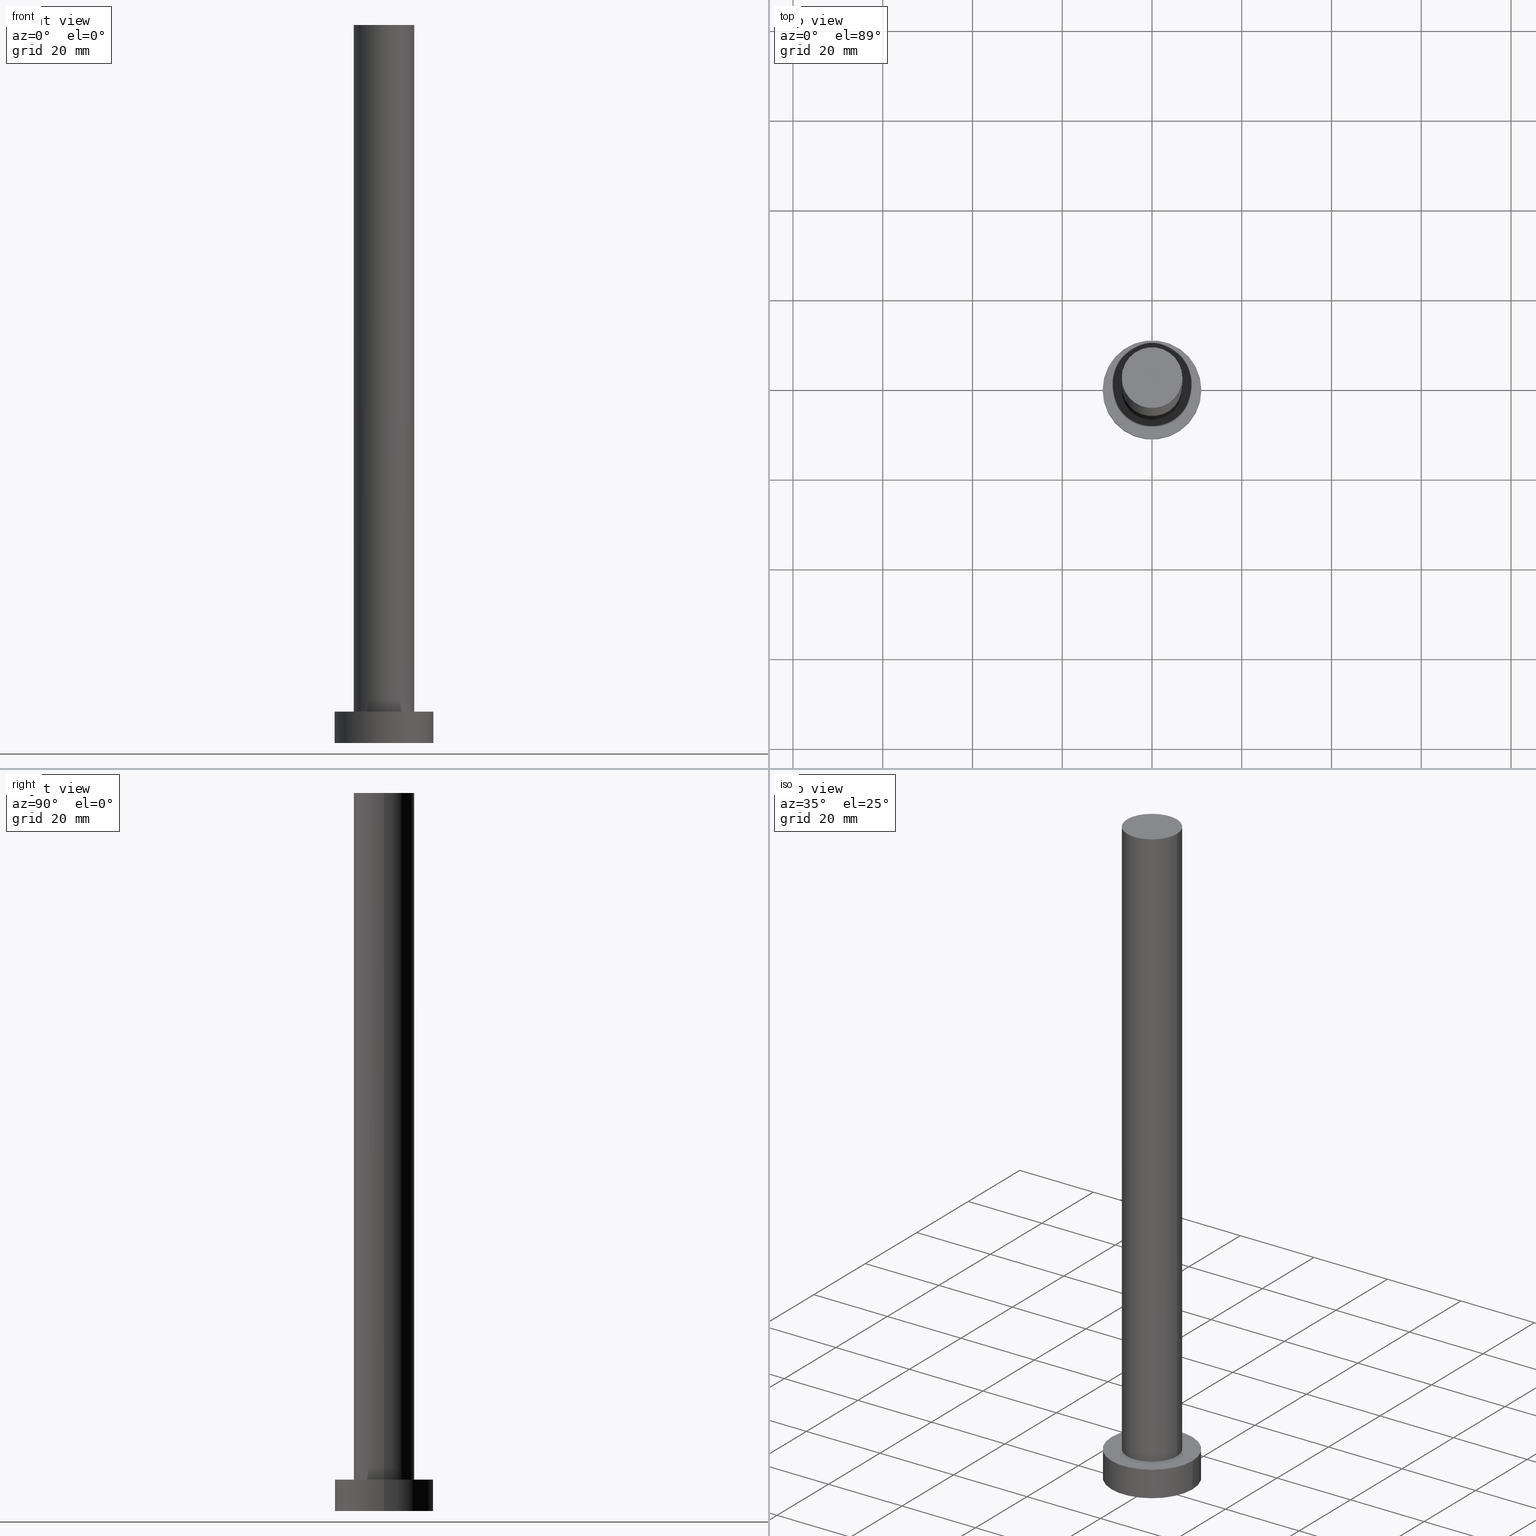
[diagram: canonical four-view strip — front | top / right | iso, engineering-drawing reading convention]
A machine part, canonical four-view strip (front | top / right | iso — engineering-drawing reading convention). The complete STEP part file that produces these views, byte-faithful:
ISO-10303-21;
HEADER;
FILE_DESCRIPTION (( 'STEP AP203' ),
    '1' );
FILE_NAME ('cd37.STEP',
    '2023-02-13T11:34:25',
    ( '' ),
    ( '' ),
    'SwSTEP 2.0',
    'SolidWorks 2019',
    '' );
FILE_SCHEMA (( 'CONFIG_CONTROL_DESIGN' ));
ENDSEC;

DATA;
#1 = PERSON_AND_ORGANIZATION ( #43, #227 ) ;
#2 = DIRECTION ( 'NONE',  ( 1.000000000000000000, 0.000000000000000000, 0.000000000000000000 ) ) ;
#3 = FACE_OUTER_BOUND ( 'NONE', #46, .T. ) ;
#4 = EDGE_CURVE ( 'NONE', #191, #225, #9, .T. ) ;
#5 = DESIGN_CONTEXT ( 'detailed design', #216, 'design' ) ;
#6 = DIRECTION ( 'NONE',  ( 0.000000000000000000, 0.000000000000000000, 1.000000000000000000 ) ) ;
#7 = DIRECTION ( 'NONE',  ( -1.000000000000000000, 0.000000000000000000, 0.000000000000000000 ) ) ;
#8 = PERSON_AND_ORGANIZATION ( #43, #227 ) ;
#9 = CIRCLE ( 'NONE', #71, 11.00000000000000000 ) ;
#10 = EDGE_CURVE ( 'NONE', #183, #200, #158, .T. ) ;
#11 = APPROVAL_STATUS ( 'not_yet_approved' ) ;
#12 = ORIENTED_EDGE ( 'NONE', *, *, #10, .F. ) ;
#13 = CC_DESIGN_DATE_AND_TIME_ASSIGNMENT ( #67, #110, ( #59 ) ) ;
#14 = DIRECTION ( 'NONE',  ( 1.000000000000000000, 0.000000000000000000, 0.000000000000000000 ) ) ;
#15 = CARTESIAN_POINT ( 'NONE',  ( 6.750000000000000000, 8.266365894244634333E-16, 7.000000000000000000 ) ) ;
#16 = CARTESIAN_POINT ( 'NONE',  ( 0.000000000000000000, 0.000000000000000000, 7.000000000000000000 ) ) ;
#17 = APPLICATION_PROTOCOL_DEFINITION ( 'international standard', 'config_control_design', 1994, #247 ) ;
#18 = MANIFOLD_SOLID_BREP ( 'P�idat vysunut�m3', #150 ) ;
#19 = CARTESIAN_POINT ( 'NONE',  ( -6.750000000000000000, 0.000000000000000000, 160.0000000000000000 ) ) ;
#20 = ADVANCED_FACE ( 'NONE', ( #32 ), #194, .T. ) ;
#21 = ORIENTED_EDGE ( 'NONE', *, *, #167, .T. ) ;
#22 = DIRECTION ( 'NONE',  ( 0.000000000000000000, 0.000000000000000000, 1.000000000000000000 ) ) ;
#23 = PRODUCT_DEFINITION_FORMATION_WITH_SPECIFIED_SOURCE ( 'LIBOVOLN�', '', #222, .NOT_KNOWN. ) ;
#24 = LOCAL_TIME ( 12, 34, 25.00000000000000000, #72 ) ;
#25 = ORIENTED_EDGE ( 'NONE', *, *, #34, .T. ) ;
#26 = CARTESIAN_POINT ( 'NONE',  ( 0.000000000000000000, 0.000000000000000000, 160.0000000000000000 ) ) ;
#27 = APPROVAL_DATE_TIME ( #51, #195 ) ;
#28 = COORDINATED_UNIVERSAL_TIME_OFFSET ( 1, 0, .AHEAD. ) ;
#29 = EDGE_LOOP ( 'NONE', ( #162, #202 ) ) ;
#30 = LOCAL_TIME ( 12, 34, 25.00000000000000000, #28 ) ;
#31 = PERSON_AND_ORGANIZATION_ROLE ( 'design_owner' ) ;
#32 = FACE_OUTER_BOUND ( 'NONE', #141, .T. ) ;
#33 = PERSON_AND_ORGANIZATION ( #43, #227 ) ;
#34 = EDGE_CURVE ( 'NONE', #200, #101, #245, .T. ) ;
#35 = DATE_TIME_ROLE ( 'classification_date' ) ;
#36 = AXIS2_PLACEMENT_3D ( 'NONE', #240, #184, #2 ) ;
#37 = DIRECTION ( 'NONE',  ( -0.000000000000000000, -0.000000000000000000, -1.000000000000000000 ) ) ;
#38 = CARTESIAN_POINT ( 'NONE',  ( 6.750000000000000000, 8.266365894244634333E-16, 160.0000000000000000 ) ) ;
#39 = PLANE ( 'NONE',  #237 ) ;
#40 = APPROVAL_PERSON_ORGANIZATION ( #8, #231, #107 ) ;
#41 = EDGE_CURVE ( 'NONE', #101, #200, #118, .T. ) ;
#42 = DIRECTION ( 'NONE',  ( 1.000000000000000000, 0.000000000000000000, -0.000000000000000000 ) ) ;
#43 = PERSON ( 'NEUR�EN�', 'NEUR�EN�', 'NEUR�EN�', ('NEUR�EN�'), ('NEUR�EN�'), ('NEUR�EN�') ) ;
#44 =( LENGTH_UNIT ( ) NAMED_UNIT ( * ) SI_UNIT ( .MILLI., .METRE. ) );
#45 = AXIS2_PLACEMENT_3D ( 'NONE', #156, #233, #60 ) ;
#46 = EDGE_LOOP ( 'NONE', ( #113, #88 ) ) ;
#47 =( NAMED_UNIT ( * ) PLANE_ANGLE_UNIT ( ) SI_UNIT ( $, .RADIAN. ) );
#48 = DATE_AND_TIME ( #207, #24 ) ;
#49 = COORDINATED_UNIVERSAL_TIME_OFFSET ( 1, 0, .AHEAD. ) ;
#50 = ORIENTED_EDGE ( 'NONE', *, *, #53, .F. ) ;
#51 = DATE_AND_TIME ( #228, #102 ) ;
#52 = ORIENTED_EDGE ( 'NONE', *, *, #152, .F. ) ;
#53 = EDGE_CURVE ( 'NONE', #225, #229, #117, .T. ) ;
#54 = CALENDAR_DATE ( 2023, 13, 2 ) ;
#55 = CIRCLE ( 'NONE', #115, 11.00000000000000000 ) ;
#56 = EDGE_LOOP ( 'NONE', ( #52, #105, #244, #80 ) ) ;
#57 = ORIENTED_EDGE ( 'NONE', *, *, #4, .F. ) ;
#58 = CARTESIAN_POINT ( 'NONE',  ( 0.000000000000000000, 0.000000000000000000, 7.000000000000000000 ) ) ;
#59 = PRODUCT_DEFINITION ( 'NEZN�M�', '', #23, #5 ) ;
#60 = DIRECTION ( 'NONE',  ( -1.000000000000000000, 0.000000000000000000, 0.000000000000000000 ) ) ;
#61 = ADVANCED_BREP_SHAPE_REPRESENTATION ( 'cd37', ( #18, #147 ), #193 ) ;
#62 = AXIS2_PLACEMENT_3D ( 'NONE', #171, #251, #94 ) ;
#63 = DIRECTION ( 'NONE',  ( 1.000000000000000000, 0.000000000000000000, 0.000000000000000000 ) ) ;
#64 = CC_DESIGN_PERSON_AND_ORGANIZATION_ASSIGNMENT ( #145, #146, ( #59 ) ) ;
#65 = DIRECTION ( 'NONE',  ( 0.000000000000000000, 0.000000000000000000, 1.000000000000000000 ) ) ;
#66 = ORIENTED_EDGE ( 'NONE', *, *, #161, .F. ) ;
#67 = DATE_AND_TIME ( #187, #137 ) ;
#68 = PERSON_AND_ORGANIZATION ( #43, #227 ) ;
#69 = PERSON_AND_ORGANIZATION ( #43, #227 ) ;
#70 = EDGE_CURVE ( 'NONE', #191, #92, #132, .T. ) ;
#71 = AXIS2_PLACEMENT_3D ( 'NONE', #58, #192, #97 ) ;
#72 = COORDINATED_UNIVERSAL_TIME_OFFSET ( 1, 0, .AHEAD. ) ;
#73 = VECTOR ( 'NONE', #74, 1000.000000000000000 ) ;
#74 = DIRECTION ( 'NONE',  ( -0.000000000000000000, -0.000000000000000000, -1.000000000000000000 ) ) ;
#75 = CIRCLE ( 'NONE', #209, 11.00000000000000000 ) ;
#76 = CARTESIAN_POINT ( 'NONE',  ( 6.750000000000000000, 8.266365894244634333E-16, 160.0000000000000000 ) ) ;
#77 = CARTESIAN_POINT ( 'NONE',  ( 0.000000000000000000, 0.000000000000000000, 7.000000000000000000 ) ) ;
#78 = EDGE_CURVE ( 'NONE', #183, #91, #246, .T. ) ;
#79 = CYLINDRICAL_SURFACE ( 'NONE', #45, 11.00000000000000000 ) ;
#80 = ORIENTED_EDGE ( 'NONE', *, *, #70, .F. ) ;
#81 = CARTESIAN_POINT ( 'NONE',  ( -6.750000000000000000, 0.000000000000000000, 7.000000000000000000 ) ) ;
#82 = CARTESIAN_POINT ( 'NONE',  ( 0.000000000000000000, 0.000000000000000000, 160.0000000000000000 ) ) ;
#83 = CARTESIAN_POINT ( 'NONE',  ( 11.00000000000000000, 1.347111479062088405E-15, 0.000000000000000000 ) ) ;
#84 = EDGE_LOOP ( 'NONE', ( #116, #253 ) ) ;
#85 = CYLINDRICAL_SURFACE ( 'NONE', #234, 6.750000000000000000 ) ;
#86 = APPROVAL_STATUS ( 'not_yet_approved' ) ;
#87 = CC_DESIGN_APPROVAL ( #231, ( #23 ) ) ;
#88 = ORIENTED_EDGE ( 'NONE', *, *, #161, .T. ) ;
#89 = PERSON_AND_ORGANIZATION_ROLE ( 'creator' ) ;
#90 = AXIS2_PLACEMENT_3D ( 'NONE', #199, #178, #100 ) ;
#91 = VERTEX_POINT ( 'NONE', #76 ) ;
#92 = VERTEX_POINT ( 'NONE', #254 ) ;
#93 = PRODUCT_DEFINITION_SHAPE ( 'NONE', 'NONE',  #59 ) ;
#94 = DIRECTION ( 'NONE',  ( 1.000000000000000000, 0.000000000000000000, 0.000000000000000000 ) ) ;
#95 = EDGE_CURVE ( 'NONE', #91, #101, #134, .T. ) ;
#96 = CARTESIAN_POINT ( 'NONE',  ( -6.750000000000000000, 0.000000000000000000, 160.0000000000000000 ) ) ;
#97 = DIRECTION ( 'NONE',  ( 1.000000000000000000, 0.000000000000000000, 0.000000000000000000 ) ) ;
#98 = PLANE ( 'NONE',  #177 ) ;
#99 = FACE_OUTER_BOUND ( 'NONE', #170, .T. ) ;
#100 = DIRECTION ( 'NONE',  ( -1.000000000000000000, 0.000000000000000000, 0.000000000000000000 ) ) ;
#101 = VERTEX_POINT ( 'NONE', #15 ) ;
#102 = LOCAL_TIME ( 12, 34, 25.00000000000000000, #49 ) ;
#103 = DIRECTION ( 'NONE',  ( 0.000000000000000000, 0.000000000000000000, 1.000000000000000000 ) ) ;
#104 = APPROVAL ( #11, 'NEUR�EN�' ) ;
#105 = ORIENTED_EDGE ( 'NONE', *, *, #53, .T. ) ;
#106 = CYLINDRICAL_SURFACE ( 'NONE', #90, 6.750000000000000000 ) ;
#107 = APPROVAL_ROLE ( '' ) ;
#108 = ADVANCED_FACE ( 'NONE', ( #173 ), #79, .T. ) ;
#109 = PERSON_AND_ORGANIZATION_ROLE ( 'classification_officer' ) ;
#110 = DATE_TIME_ROLE ( 'creation_date' ) ;
#111 = VECTOR ( 'NONE', #151, 1000.000000000000000 ) ;
#112 = ORIENTED_EDGE ( 'NONE', *, *, #34, .F. ) ;
#113 = ORIENTED_EDGE ( 'NONE', *, *, #78, .T. ) ;
#114 = DIRECTION ( 'NONE',  ( -0.000000000000000000, -0.000000000000000000, -1.000000000000000000 ) ) ;
#115 = AXIS2_PLACEMENT_3D ( 'NONE', #218, #198, #221 ) ;
#116 = ORIENTED_EDGE ( 'NONE', *, *, #4, .T. ) ;
#117 = LINE ( 'NONE', #176, #73 ) ;
#118 = CIRCLE ( 'NONE', #175, 6.750000000000000000 ) ;
#119 = FACE_OUTER_BOUND ( 'NONE', #29, .T. ) ;
#120 = DIRECTION ( 'NONE',  ( 1.000000000000000000, 0.000000000000000000, -0.000000000000000000 ) ) ;
#121 = FACE_OUTER_BOUND ( 'NONE', #219, .T. ) ;
#122 = ADVANCED_FACE ( 'NONE', ( #196, #215 ), #39, .T. ) ;
#123 = CARTESIAN_POINT ( 'NONE',  ( 0.000000000000000000, 0.000000000000000000, 0.000000000000000000 ) ) ;
#124 = ORIENTED_EDGE ( 'NONE', *, *, #95, .T. ) ;
#125 = MECHANICAL_CONTEXT ( 'NONE', #247, 'mechanical' ) ;
#126 = PERSON_AND_ORGANIZATION ( #43, #227 ) ;
#127 = COORDINATED_UNIVERSAL_TIME_OFFSET ( 1, 0, .AHEAD. ) ;
#128 = APPROVAL_ROLE ( '' ) ;
#129 = DATE_AND_TIME ( #54, #153 ) ;
#130 = PRODUCT_RELATED_PRODUCT_CATEGORY ( 'detail', '', ( #222 ) ) ;
#131 = CIRCLE ( 'NONE', #203, 11.00000000000000000 ) ;
#132 = LINE ( 'NONE', #210, #217 ) ;
#133 = ADVANCED_FACE ( 'NONE', ( #119 ), #236, .F. ) ;
#134 = LINE ( 'NONE', #38, #204 ) ;
#135 = AXIS2_PLACEMENT_3D ( 'NONE', #232, #213, #255 ) ;
#136 = EDGE_LOOP ( 'NONE', ( #112, #241 ) ) ;
#137 = LOCAL_TIME ( 12, 34, 25.00000000000000000, #127 ) ;
#138 = ORIENTED_EDGE ( 'NONE', *, *, #95, .F. ) ;
#139 = DIRECTION ( 'NONE',  ( -0.000000000000000000, -0.000000000000000000, -1.000000000000000000 ) ) ;
#140 = DIRECTION ( 'NONE',  ( 1.000000000000000000, 0.000000000000000000, 0.000000000000000000 ) ) ;
#141 = EDGE_LOOP ( 'NONE', ( #50, #57, #186, #21 ) ) ;
#142 = DIRECTION ( 'NONE',  ( 1.000000000000000000, 0.000000000000000000, -0.000000000000000000 ) ) ;
#143 = ORIENTED_EDGE ( 'NONE', *, *, #41, .T. ) ;
#144 = CALENDAR_DATE ( 2023, 13, 2 ) ;
#145 = PERSON_AND_ORGANIZATION ( #43, #227 ) ;
#146 = PERSON_AND_ORGANIZATION_ROLE ( 'creator' ) ;
#147 = AXIS2_PLACEMENT_3D ( 'NONE', #123, #201, #180 ) ;
#148 = CC_DESIGN_SECURITY_CLASSIFICATION ( #157, ( #23 ) ) ;
#149 = CC_DESIGN_PERSON_AND_ORGANIZATION_ASSIGNMENT ( #68, #109, ( #157 ) ) ;
#150 = CLOSED_SHELL ( 'NONE', ( #220, #108, #20, #122, #133, #212, #174 ) ) ;
#151 = DIRECTION ( 'NONE',  ( -0.000000000000000000, -0.000000000000000000, -1.000000000000000000 ) ) ;
#152 = EDGE_CURVE ( 'NONE', #225, #191, #131, .T. ) ;
#153 = LOCAL_TIME ( 12, 34, 25.00000000000000000, #226 ) ;
#154 = DIRECTION ( 'NONE',  ( 1.000000000000000000, 0.000000000000000000, 0.000000000000000000 ) ) ;
#155 = AXIS2_PLACEMENT_3D ( 'NONE', #159, #6, #142 ) ;
#156 = CARTESIAN_POINT ( 'NONE',  ( 0.000000000000000000, 0.000000000000000000, 7.000000000000000000 ) ) ;
#157 = SECURITY_CLASSIFICATION ( '', '', #205 ) ;
#158 = LINE ( 'NONE', #96, #111 ) ;
#159 = CARTESIAN_POINT ( 'NONE',  ( 0.000000000000000000, 0.000000000000000000, 0.000000000000000000 ) ) ;
#160 = CARTESIAN_POINT ( 'NONE',  ( 11.00000000000000000, 1.347111479062088405E-15, 7.000000000000000000 ) ) ;
#161 = EDGE_CURVE ( 'NONE', #91, #183, #181, .T. ) ;
#162 = ORIENTED_EDGE ( 'NONE', *, *, #167, .F. ) ;
#163 =( NAMED_UNIT ( * ) SI_UNIT ( $, .STERADIAN. ) SOLID_ANGLE_UNIT ( ) );
#164 = APPROVAL_DATE_TIME ( #48, #104 ) ;
#165 = PERSON_AND_ORGANIZATION_ROLE ( 'design_supplier' ) ;
#166 = APPROVAL_ROLE ( '' ) ;
#167 = EDGE_CURVE ( 'NONE', #92, #229, #75, .T. ) ;
#168 = APPLICATION_PROTOCOL_DEFINITION ( 'international standard', 'config_control_design', 1994, #216 ) ;
#169 = CC_DESIGN_APPROVAL ( #104, ( #157 ) ) ;
#170 = EDGE_LOOP ( 'NONE', ( #66, #124, #143, #12 ) ) ;
#171 = CARTESIAN_POINT ( 'NONE',  ( 0.000000000000000000, 0.000000000000000000, 160.0000000000000000 ) ) ;
#172 = DIRECTION ( 'NONE',  ( 0.000000000000000000, 0.000000000000000000, 1.000000000000000000 ) ) ;
#173 = FACE_OUTER_BOUND ( 'NONE', #56, .T. ) ;
#174 = ADVANCED_FACE ( 'NONE', ( #3 ), #98, .T. ) ;
#175 = AXIS2_PLACEMENT_3D ( 'NONE', #230, #250, #14 ) ;
#176 = CARTESIAN_POINT ( 'NONE',  ( 11.00000000000000000, 1.347111479062088405E-15, 7.000000000000000000 ) ) ;
#177 = AXIS2_PLACEMENT_3D ( 'NONE', #82, #103, #120 ) ;
#178 = DIRECTION ( 'NONE',  ( -0.000000000000000000, -0.000000000000000000, -1.000000000000000000 ) ) ;
#179 = EDGE_CURVE ( 'NONE', #229, #92, #55, .T. ) ;
#180 = DIRECTION ( 'NONE',  ( 1.000000000000000000, 0.000000000000000000, 0.000000000000000000 ) ) ;
#181 = CIRCLE ( 'NONE', #36, 6.750000000000000000 ) ;
#182 = CARTESIAN_POINT ( 'NONE',  ( 0.000000000000000000, 0.000000000000000000, 7.000000000000000000 ) ) ;
#183 = VERTEX_POINT ( 'NONE', #19 ) ;
#184 = DIRECTION ( 'NONE',  ( 0.000000000000000000, 0.000000000000000000, 1.000000000000000000 ) ) ;
#185 = APPROVAL_DATE_TIME ( #208, #231 ) ;
#186 = ORIENTED_EDGE ( 'NONE', *, *, #70, .T. ) ;
#187 = CALENDAR_DATE ( 2023, 13, 2 ) ;
#188 = CC_DESIGN_DATE_AND_TIME_ASSIGNMENT ( #129, #35, ( #157 ) ) ;
#189 = APPROVAL_STATUS ( 'not_yet_approved' ) ;
#190 = PERSON_AND_ORGANIZATION ( #43, #227 ) ;
#191 = VERTEX_POINT ( 'NONE', #235 ) ;
#192 = DIRECTION ( 'NONE',  ( 0.000000000000000000, 0.000000000000000000, 1.000000000000000000 ) ) ;
#193 =( GEOMETRIC_REPRESENTATION_CONTEXT ( 3 ) GLOBAL_UNCERTAINTY_ASSIGNED_CONTEXT ( ( #239 ) ) GLOBAL_UNIT_ASSIGNED_CONTEXT ( ( #44, #47, #163 ) ) REPRESENTATION_CONTEXT ( 'NONE', 'WORKASPACE' ) );
#194 = CYLINDRICAL_SURFACE ( 'NONE', #135, 11.00000000000000000 ) ;
#195 = APPROVAL ( #86, 'NEUR�EN�' ) ;
#196 = FACE_BOUND ( 'NONE', #136, .T. ) ;
#197 = AXIS2_PLACEMENT_3D ( 'NONE', #77, #172, #154 ) ;
#198 = DIRECTION ( 'NONE',  ( 0.000000000000000000, 0.000000000000000000, 1.000000000000000000 ) ) ;
#199 = CARTESIAN_POINT ( 'NONE',  ( 0.000000000000000000, 0.000000000000000000, 160.0000000000000000 ) ) ;
#200 = VERTEX_POINT ( 'NONE', #81 ) ;
#201 = DIRECTION ( 'NONE',  ( 0.000000000000000000, 0.000000000000000000, 1.000000000000000000 ) ) ;
#202 = ORIENTED_EDGE ( 'NONE', *, *, #179, .F. ) ;
#203 = AXIS2_PLACEMENT_3D ( 'NONE', #182, #22, #140 ) ;
#204 = VECTOR ( 'NONE', #114, 1000.000000000000000 ) ;
#205 = SECURITY_CLASSIFICATION_LEVEL ( 'unclassified' ) ;
#206 = ORIENTED_EDGE ( 'NONE', *, *, #10, .T. ) ;
#207 = CALENDAR_DATE ( 2023, 13, 2 ) ;
#208 = DATE_AND_TIME ( #144, #30 ) ;
#209 = AXIS2_PLACEMENT_3D ( 'NONE', #243, #65, #63 ) ;
#210 = CARTESIAN_POINT ( 'NONE',  ( -11.00000000000000000, 0.000000000000000000, 7.000000000000000000 ) ) ;
#211 = ORIENTED_EDGE ( 'NONE', *, *, #78, .F. ) ;
#212 = ADVANCED_FACE ( 'NONE', ( #121 ), #106, .T. ) ;
#213 = DIRECTION ( 'NONE',  ( -0.000000000000000000, -0.000000000000000000, -1.000000000000000000 ) ) ;
#214 = APPROVAL_PERSON_ORGANIZATION ( #190, #195, #166 ) ;
#215 = FACE_OUTER_BOUND ( 'NONE', #84, .T. ) ;
#216 = APPLICATION_CONTEXT ( 'configuration controlled 3d designs of mechanical parts and assemblies' ) ;
#217 = VECTOR ( 'NONE', #37, 1000.000000000000000 ) ;
#218 = CARTESIAN_POINT ( 'NONE',  ( 0.000000000000000000, 0.000000000000000000, 0.000000000000000000 ) ) ;
#219 = EDGE_LOOP ( 'NONE', ( #138, #211, #206, #25 ) ) ;
#220 = ADVANCED_FACE ( 'NONE', ( #99 ), #85, .T. ) ;
#221 = DIRECTION ( 'NONE',  ( 1.000000000000000000, 0.000000000000000000, 0.000000000000000000 ) ) ;
#222 = PRODUCT ( 'cd37', 'cd37', '', ( #125 ) ) ;
#223 = APPROVAL_PERSON_ORGANIZATION ( #69, #104, #128 ) ;
#224 = CC_DESIGN_PERSON_AND_ORGANIZATION_ASSIGNMENT ( #126, #165, ( #23 ) ) ;
#225 = VERTEX_POINT ( 'NONE', #160 ) ;
#226 = COORDINATED_UNIVERSAL_TIME_OFFSET ( 1, 0, .AHEAD. ) ;
#227 = ORGANIZATION ( 'NEUR�EN�', 'NEUR�EN�', '' ) ;
#228 = CALENDAR_DATE ( 2023, 13, 2 ) ;
#229 = VERTEX_POINT ( 'NONE', #83 ) ;
#230 = CARTESIAN_POINT ( 'NONE',  ( 0.000000000000000000, 0.000000000000000000, 7.000000000000000000 ) ) ;
#231 = APPROVAL ( #189, 'NEUR�EN�' ) ;
#232 = CARTESIAN_POINT ( 'NONE',  ( 0.000000000000000000, 0.000000000000000000, 7.000000000000000000 ) ) ;
#233 = DIRECTION ( 'NONE',  ( -0.000000000000000000, -0.000000000000000000, -1.000000000000000000 ) ) ;
#234 = AXIS2_PLACEMENT_3D ( 'NONE', #26, #139, #7 ) ;
#235 = CARTESIAN_POINT ( 'NONE',  ( -11.00000000000000000, 0.000000000000000000, 7.000000000000000000 ) ) ;
#236 = PLANE ( 'NONE',  #155 ) ;
#237 = AXIS2_PLACEMENT_3D ( 'NONE', #16, #238, #42 ) ;
#238 = DIRECTION ( 'NONE',  ( 0.000000000000000000, 0.000000000000000000, 1.000000000000000000 ) ) ;
#239 = UNCERTAINTY_MEASURE_WITH_UNIT (LENGTH_MEASURE( 1.000000000000000082E-05 ), #44, 'distance_accuracy_value', 'NONE');
#240 = CARTESIAN_POINT ( 'NONE',  ( 0.000000000000000000, 0.000000000000000000, 160.0000000000000000 ) ) ;
#241 = ORIENTED_EDGE ( 'NONE', *, *, #41, .F. ) ;
#242 = CC_DESIGN_PERSON_AND_ORGANIZATION_ASSIGNMENT ( #1, #31, ( #222 ) ) ;
#243 = CARTESIAN_POINT ( 'NONE',  ( 0.000000000000000000, 0.000000000000000000, 0.000000000000000000 ) ) ;
#244 = ORIENTED_EDGE ( 'NONE', *, *, #179, .T. ) ;
#245 = CIRCLE ( 'NONE', #197, 6.750000000000000000 ) ;
#246 = CIRCLE ( 'NONE', #62, 6.750000000000000000 ) ;
#247 = APPLICATION_CONTEXT ( 'configuration controlled 3d designs of mechanical parts and assemblies' ) ;
#248 = SHAPE_DEFINITION_REPRESENTATION ( #93, #61 ) ;
#249 = CC_DESIGN_APPROVAL ( #195, ( #59 ) ) ;
#250 = DIRECTION ( 'NONE',  ( 0.000000000000000000, 0.000000000000000000, 1.000000000000000000 ) ) ;
#251 = DIRECTION ( 'NONE',  ( 0.000000000000000000, 0.000000000000000000, 1.000000000000000000 ) ) ;
#252 = CC_DESIGN_PERSON_AND_ORGANIZATION_ASSIGNMENT ( #33, #89, ( #23 ) ) ;
#253 = ORIENTED_EDGE ( 'NONE', *, *, #152, .T. ) ;
#254 = CARTESIAN_POINT ( 'NONE',  ( -11.00000000000000000, 0.000000000000000000, 0.000000000000000000 ) ) ;
#255 = DIRECTION ( 'NONE',  ( -1.000000000000000000, 0.000000000000000000, 0.000000000000000000 ) ) ;
ENDSEC;
END-ISO-10303-21;
